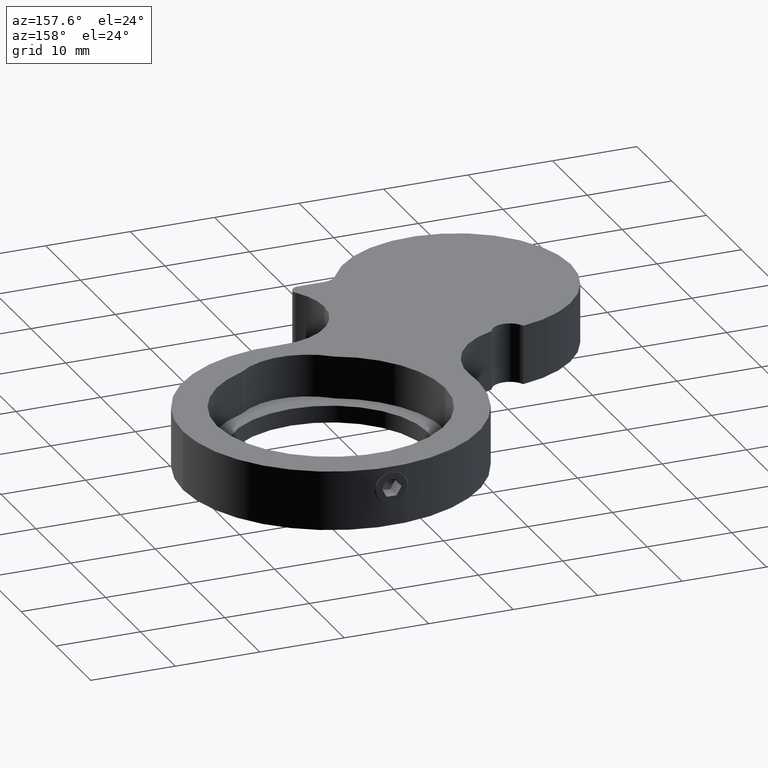
[diagram: clean part render]
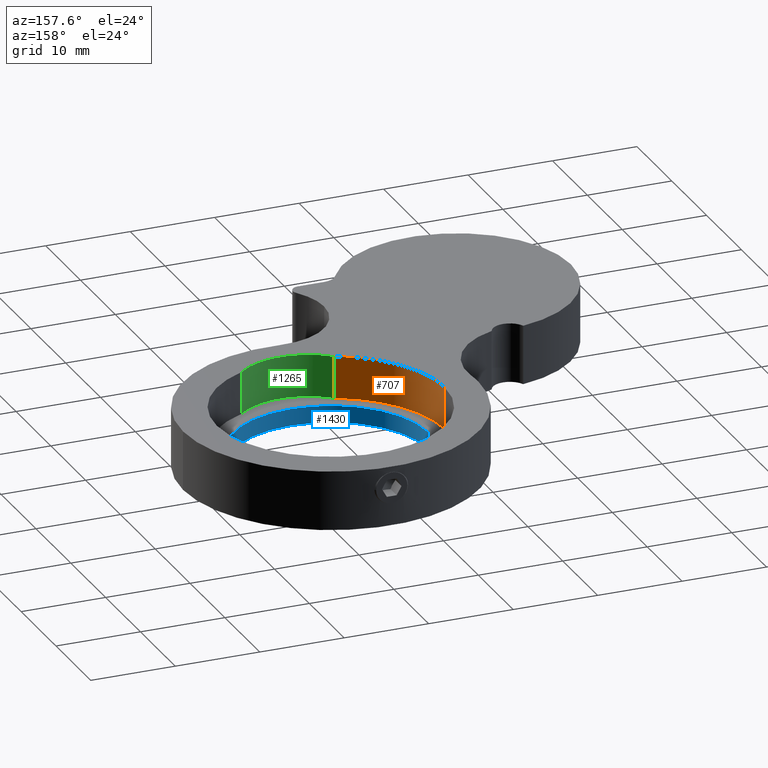
[diagram: same view with three faces highlighted in distinct colors, each labeled with its STEP entity id]
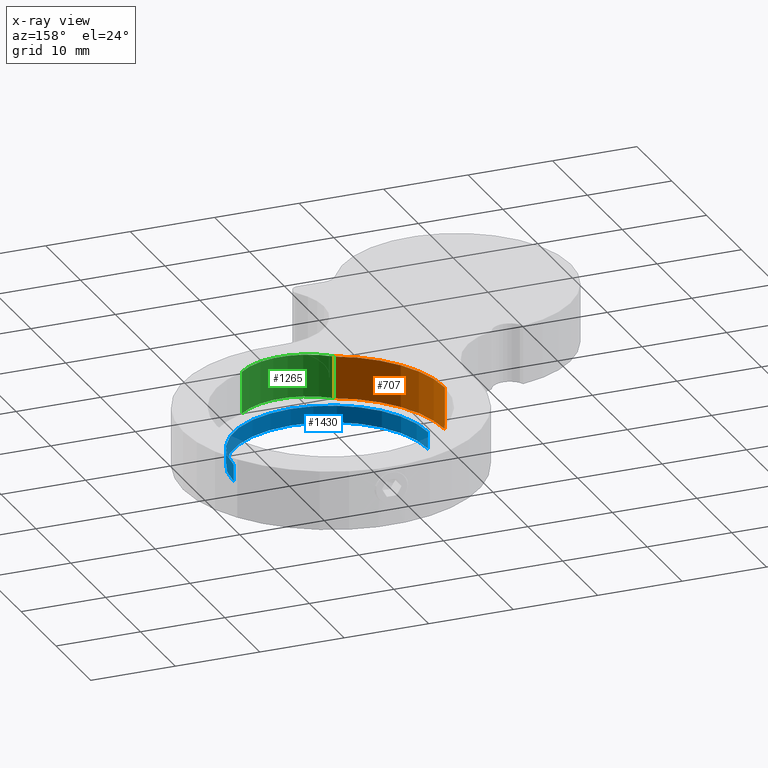
[diagram: x-ray of the same camera — body ghosted, the three highlighted faces saturated]
A machine part, auxiliary view with three faces highlighted in distinct colors.
The next image is the same camera in x-ray (body ghosted, the three faces saturated) — at least one of them is partly hidden behind the body in this view.
Their STEP definitions:

[orange] entity #707 — the highlighted cylindrical surface (partial cylindrical patch) has radius 13.5 mm, axis along (-0, -0, 1).
#4 = EDGE_CURVE ( 'NONE', #289, #268, #138, .T. ) ;
#112 = CARTESIAN_POINT ( 'NONE',  ( 14.66858832348862100, 18.96969456225321700, 54.50000000000000700 ) ) ;
#119 = ORIENTED_EDGE ( 'NONE', *, *, #4, .T. ) ;
#138 = LINE ( 'NONE', #1076, #698 ) ;
#144 = VERTEX_POINT ( 'NONE', #873 ) ;
#219 = CIRCLE ( 'NONE', #264, 13.49999999999999800 ) ;
#242 = VECTOR ( 'NONE', #689, 1000.000000000000000 ) ;
#264 = AXIS2_PLACEMENT_3D ( 'NONE', #1169, #326, #683 ) ;
#268 = VERTEX_POINT ( 'NONE', #753 ) ;
#289 = VERTEX_POINT ( 'NONE', #1017 ) ;
#326 = DIRECTION ( 'NONE',  ( 0.0000000000000000000, 0.0000000000000000000, 1.000000000000000000 ) ) ;
#348 = FACE_OUTER_BOUND ( 'NONE', #1185, .T. ) ;
#354 = CARTESIAN_POINT ( 'NONE',  ( 9.207591600627438300, 6.623540716099372900, 54.50000000000000700 ) ) ;
#379 = CIRCLE ( 'NONE', #484, 13.49999999999999800 ) ;
#409 = CARTESIAN_POINT ( 'NONE',  ( 14.66858832348862100, 18.96969456225321700, 59.50000000000000700 ) ) ;
#484 = AXIS2_PLACEMENT_3D ( 'NONE', #409, #1242, #1362 ) ;
#486 = ORIENTED_EDGE ( 'NONE', *, *, #857, .F. ) ;
#512 = LINE ( 'NONE', #354, #242 ) ;
#683 = DIRECTION ( 'NONE',  ( 1.000000000000000000, 0.0000000000000000000, 0.0000000000000000000 ) ) ;
#689 = DIRECTION ( 'NONE',  ( -0.0000000000000000000, -0.0000000000000000000, 1.000000000000000000 ) ) ;
#698 = VECTOR ( 'NONE', #1086, 1000.000000000000000 ) ;
#707 = ADVANCED_FACE ( 'NONE', ( #348 ), #1449, .F. ) ;
#753 = CARTESIAN_POINT ( 'NONE',  ( 1.168588323488621200, 18.96969456225321700, 59.50000000000000700 ) ) ;
#857 = EDGE_CURVE ( 'NONE', #144, #1221, #512, .T. ) ;
#873 = CARTESIAN_POINT ( 'NONE',  ( 9.207591600627438300, 6.623540716099372900, 54.50000000000000700 ) ) ;
#893 = EDGE_CURVE ( 'NONE', #289, #144, #219, .T. ) ;
#927 = ORIENTED_EDGE ( 'NONE', *, *, #893, .F. ) ;
#1017 = CARTESIAN_POINT ( 'NONE',  ( 1.168588323488621200, 18.96969456225321700, 54.50000000000000700 ) ) ;
#1044 = DIRECTION ( 'NONE',  ( -0.0000000000000000000, -0.0000000000000000000, 1.000000000000000000 ) ) ;
#1076 = CARTESIAN_POINT ( 'NONE',  ( 1.168588323488621200, 18.96969456225321700, 54.50000000000000700 ) ) ;
#1086 = DIRECTION ( 'NONE',  ( -0.0000000000000000000, -0.0000000000000000000, 1.000000000000000000 ) ) ;
#1138 = CARTESIAN_POINT ( 'NONE',  ( 9.207591600627438300, 6.623540716099372900, 59.50000000000000700 ) ) ;
#1169 = CARTESIAN_POINT ( 'NONE',  ( 14.66858832348862100, 18.96969456225321700, 54.50000000000000700 ) ) ;
#1185 = EDGE_LOOP ( 'NONE', ( #927, #119, #1354, #486 ) ) ;
#1218 = AXIS2_PLACEMENT_3D ( 'NONE', #112, #1044, #1514 ) ;
#1221 = VERTEX_POINT ( 'NONE', #1138 ) ;
#1242 = DIRECTION ( 'NONE',  ( 0.0000000000000000000, 0.0000000000000000000, 1.000000000000000000 ) ) ;
#1246 = EDGE_CURVE ( 'NONE', #268, #1221, #379, .T. ) ;
#1354 = ORIENTED_EDGE ( 'NONE', *, *, #1246, .T. ) ;
#1362 = DIRECTION ( 'NONE',  ( 1.000000000000000000, 0.0000000000000000000, 0.0000000000000000000 ) ) ;
#1449 = CYLINDRICAL_SURFACE ( 'NONE', #1218, 13.49999999999999800 ) ;
#1514 = DIRECTION ( 'NONE',  ( 1.000000000000000000, 0.0000000000000000000, 0.0000000000000000000 ) ) ;

[blue] entity #1430 — the highlighted cylindrical surface (partial cylindrical patch) has radius 11.5 mm, axis along (-0, -0, -1).
#11 = LINE ( 'NONE', #302, #855 ) ;
#98 = CARTESIAN_POINT ( 'NONE',  ( 14.66858832348862100, 18.96969456225321700, 52.50000000000000700 ) ) ;
#205 = CIRCLE ( 'NONE', #1473, 11.50000000000000400 ) ;
#252 = DIRECTION ( 'NONE',  ( -0.0000000000000000000, -0.0000000000000000000, -1.000000000000000000 ) ) ;
#278 = FACE_OUTER_BOUND ( 'NONE', #1402, .T. ) ;
#293 = CIRCLE ( 'NONE', #850, 11.50000000000000400 ) ;
#302 = CARTESIAN_POINT ( 'NONE',  ( 3.168588323488616100, 18.96969456225321700, 59.50000000000000700 ) ) ;
#344 = CARTESIAN_POINT ( 'NONE',  ( 26.16858832348862400, 18.96969456225321700, 54.50000000000000700 ) ) ;
#411 = EDGE_CURVE ( 'NONE', #1033, #1363, #293, .T. ) ;
#435 = LINE ( 'NONE', #1287, #925 ) ;
#451 = CARTESIAN_POINT ( 'NONE',  ( 14.66858832348862100, 18.96969456225321700, 59.50000000000000700 ) ) ;
#541 = ORIENTED_EDGE ( 'NONE', *, *, #983, .T. ) ;
#549 = DIRECTION ( 'NONE',  ( 0.0000000000000000000, 0.0000000000000000000, 1.000000000000000000 ) ) ;
#651 = EDGE_CURVE ( 'NONE', #1331, #1033, #11, .T. ) ;
#664 = CYLINDRICAL_SURFACE ( 'NONE', #728, 11.50000000000000500 ) ;
#669 = DIRECTION ( 'NONE',  ( -1.000000000000000000, 0.0000000000000000000, 0.0000000000000000000 ) ) ;
#728 = AXIS2_PLACEMENT_3D ( 'NONE', #451, #802, #669 ) ;
#734 = VERTEX_POINT ( 'NONE', #344 ) ;
#742 = ORIENTED_EDGE ( 'NONE', *, *, #411, .F. ) ;
#802 = DIRECTION ( 'NONE',  ( -0.0000000000000000000, -0.0000000000000000000, -1.000000000000000000 ) ) ;
#833 = CARTESIAN_POINT ( 'NONE',  ( 3.168588323488616100, 18.96969456225321700, 52.50000000000000700 ) ) ;
#850 = AXIS2_PLACEMENT_3D ( 'NONE', #98, #919, #1504 ) ;
#855 = VECTOR ( 'NONE', #1251, 1000.000000000000000 ) ;
#919 = DIRECTION ( 'NONE',  ( 0.0000000000000000000, 0.0000000000000000000, 1.000000000000000000 ) ) ;
#925 = VECTOR ( 'NONE', #252, 1000.000000000000000 ) ;
#940 = CARTESIAN_POINT ( 'NONE',  ( 14.66858832348862100, 18.96969456225321700, 54.50000000000000700 ) ) ;
#955 = EDGE_CURVE ( 'NONE', #1331, #734, #205, .T. ) ;
#966 = ORIENTED_EDGE ( 'NONE', *, *, #651, .F. ) ;
#983 = EDGE_CURVE ( 'NONE', #734, #1363, #435, .T. ) ;
#1033 = VERTEX_POINT ( 'NONE', #833 ) ;
#1132 = ORIENTED_EDGE ( 'NONE', *, *, #955, .T. ) ;
#1149 = CARTESIAN_POINT ( 'NONE',  ( 3.168588323488616100, 18.96969456225321700, 54.50000000000000700 ) ) ;
#1251 = DIRECTION ( 'NONE',  ( -0.0000000000000000000, -0.0000000000000000000, -1.000000000000000000 ) ) ;
#1272 = DIRECTION ( 'NONE',  ( 1.000000000000000000, 0.0000000000000000000, 0.0000000000000000000 ) ) ;
#1287 = CARTESIAN_POINT ( 'NONE',  ( 26.16858832348862400, 18.96969456225321700, 59.50000000000000700 ) ) ;
#1331 = VERTEX_POINT ( 'NONE', #1149 ) ;
#1363 = VERTEX_POINT ( 'NONE', #1509 ) ;
#1402 = EDGE_LOOP ( 'NONE', ( #1132, #541, #742, #966 ) ) ;
#1430 = ADVANCED_FACE ( 'NONE', ( #278 ), #664, .F. ) ;
#1473 = AXIS2_PLACEMENT_3D ( 'NONE', #940, #549, #1272 ) ;
#1504 = DIRECTION ( 'NONE',  ( 1.000000000000000000, 0.0000000000000000000, 0.0000000000000000000 ) ) ;
#1509 = CARTESIAN_POINT ( 'NONE',  ( 26.16858832348862400, 18.96969456225321700, 52.50000000000000700 ) ) ;

[green] entity #1265 — the highlighted cylindrical surface (partial cylindrical patch) has radius 8 mm, axis along (-0, -0, 1).
#28 = ORIENTED_EDGE ( 'NONE', *, *, #857, .T. ) ;
#43 = LINE ( 'NONE', #276, #1264 ) ;
#144 = VERTEX_POINT ( 'NONE', #873 ) ;
#183 = DIRECTION ( 'NONE',  ( 1.000000000000000000, 0.0000000000000000000, 0.0000000000000000000 ) ) ;
#212 = VERTEX_POINT ( 'NONE', #1329 ) ;
#242 = VECTOR ( 'NONE', #689, 1000.000000000000000 ) ;
#246 = AXIS2_PLACEMENT_3D ( 'NONE', #1311, #473, #974 ) ;
#253 = DIRECTION ( 'NONE',  ( 0.0000000000000000000, 0.0000000000000000000, 1.000000000000000000 ) ) ;
#276 = CARTESIAN_POINT ( 'NONE',  ( 20.12958504634979900, 6.623540716099371100, 54.50000000000000700 ) ) ;
#333 = AXIS2_PLACEMENT_3D ( 'NONE', #1432, #253, #346 ) ;
#346 = DIRECTION ( 'NONE',  ( 1.000000000000000000, 0.0000000000000000000, 0.0000000000000000000 ) ) ;
#354 = CARTESIAN_POINT ( 'NONE',  ( 9.207591600627438300, 6.623540716099372900, 54.50000000000000700 ) ) ;
#473 = DIRECTION ( 'NONE',  ( 0.0000000000000000000, 0.0000000000000000000, 1.000000000000000000 ) ) ;
#507 = AXIS2_PLACEMENT_3D ( 'NONE', #1247, #1357, #183 ) ;
#512 = LINE ( 'NONE', #354, #242 ) ;
#544 = ORIENTED_EDGE ( 'NONE', *, *, #1130, .F. ) ;
#574 = CYLINDRICAL_SURFACE ( 'NONE', #507, 8.000000000000000000 ) ;
#656 = CIRCLE ( 'NONE', #246, 8.000000000000000000 ) ;
#689 = DIRECTION ( 'NONE',  ( -0.0000000000000000000, -0.0000000000000000000, 1.000000000000000000 ) ) ;
#818 = EDGE_CURVE ( 'NONE', #1221, #1164, #656, .T. ) ;
#834 = ORIENTED_EDGE ( 'NONE', *, *, #818, .T. ) ;
#857 = EDGE_CURVE ( 'NONE', #144, #1221, #512, .T. ) ;
#873 = CARTESIAN_POINT ( 'NONE',  ( 9.207591600627438300, 6.623540716099372900, 54.50000000000000700 ) ) ;
#913 = CIRCLE ( 'NONE', #333, 8.000000000000000000 ) ;
#974 = DIRECTION ( 'NONE',  ( 1.000000000000000000, 0.0000000000000000000, 0.0000000000000000000 ) ) ;
#1130 = EDGE_CURVE ( 'NONE', #212, #1164, #43, .T. ) ;
#1138 = CARTESIAN_POINT ( 'NONE',  ( 9.207591600627438300, 6.623540716099372900, 59.50000000000000700 ) ) ;
#1164 = VERTEX_POINT ( 'NONE', #1450 ) ;
#1179 = EDGE_LOOP ( 'NONE', ( #834, #544, #1212, #28 ) ) ;
#1212 = ORIENTED_EDGE ( 'NONE', *, *, #1515, .F. ) ;
#1221 = VERTEX_POINT ( 'NONE', #1138 ) ;
#1247 = CARTESIAN_POINT ( 'NONE',  ( 14.66858832348862100, 12.46969456225322000, 54.50000000000000700 ) ) ;
#1264 = VECTOR ( 'NONE', #1456, 1000.000000000000000 ) ;
#1265 = ADVANCED_FACE ( 'NONE', ( #1397 ), #574, .F. ) ;
#1311 = CARTESIAN_POINT ( 'NONE',  ( 14.66858832348862100, 12.46969456225322000, 59.50000000000000700 ) ) ;
#1329 = CARTESIAN_POINT ( 'NONE',  ( 20.12958504634979900, 6.623540716099371100, 54.50000000000000700 ) ) ;
#1357 = DIRECTION ( 'NONE',  ( -0.0000000000000000000, -0.0000000000000000000, 1.000000000000000000 ) ) ;
#1397 = FACE_OUTER_BOUND ( 'NONE', #1179, .T. ) ;
#1432 = CARTESIAN_POINT ( 'NONE',  ( 14.66858832348862100, 12.46969456225322000, 54.50000000000000700 ) ) ;
#1450 = CARTESIAN_POINT ( 'NONE',  ( 20.12958504634979900, 6.623540716099371100, 59.50000000000000700 ) ) ;
#1456 = DIRECTION ( 'NONE',  ( -0.0000000000000000000, -0.0000000000000000000, 1.000000000000000000 ) ) ;
#1515 = EDGE_CURVE ( 'NONE', #144, #212, #913, .T. ) ;